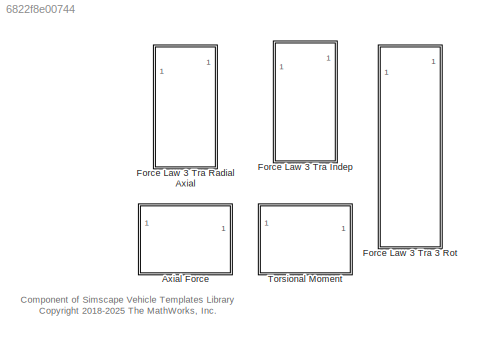
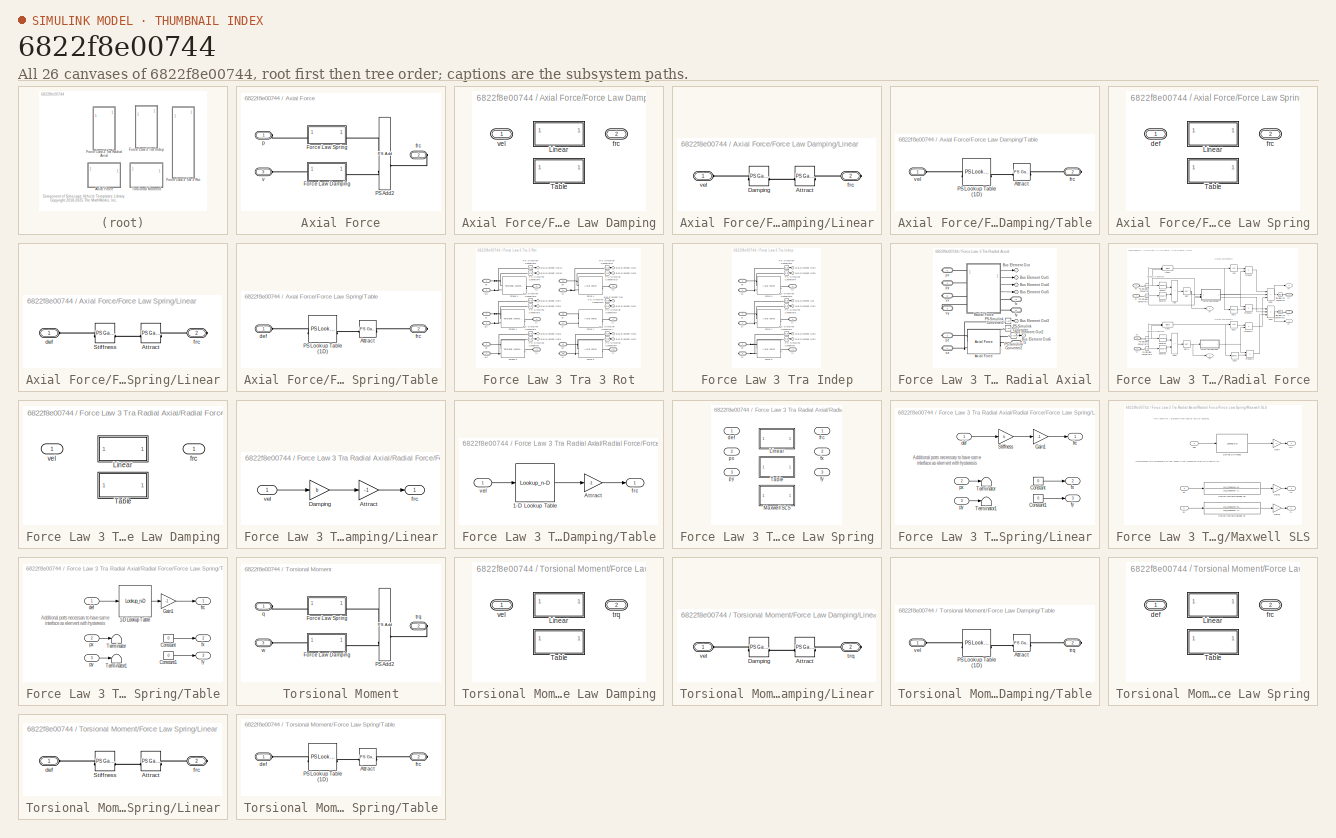
[diagram: thumbnail index - all 26 canvases of the model, root first then tree order]
MODEL slx_6822f8e00744
KIND library
CONFIG AbsTol = auto
CONFIG EnableMultiTasking = off
CONFIG FixedStep = auto
CONFIG MaxStep = auto
CONFIG MinStep = auto
CONFIG RelTol = 1e-3
CONFIG SampleTimeConstraint = Unconstrained
CONFIG SolverName = VariableStepAuto
CONFIG StartTime = 0.0
CONFIG StopTime = 10.0
BLOCK [SubSystem] Axial Force
BLOCK [SubSystem] Axial Force/Force Law Damping
  LabelModeActiveChoice = Linear
  Variant = on
  VariantControl = Choice
  VariantControlMode = label
BLOCK [SubSystem] Axial Force/Force Law Damping/Linear
  VariantControl = Linear
BLOCK [Reference] Axial Force/Force Law Damping/Linear/Attract  REF=fl_lib/Physical Signals/Functions/PS Gain
  SourceBlock = fl_lib/Physical Signals/Functions/PS Gain
  SourceType = PS Gain
BLOCK [Reference] Axial Force/Force Law Damping/Linear/Damping  REF=fl_lib/Physical Signals/Functions/PS Gain
  SourceBlock = fl_lib/Physical Signals/Functions/PS Gain
  SourceType = PS Gain
BLOCK [PMIOPort] Axial Force/Force Law Damping/Linear/frc
  Port = 2
  Side = Right
BLOCK [PMIOPort] Axial Force/Force Law Damping/Linear/vel
  Side = Left
BLOCK [SubSystem] Axial Force/Force Law Damping/Table
  VariantControl = Table
BLOCK [Reference] Axial Force/Force Law Damping/Table/Attract  REF=fl_lib/Physical Signals/Functions/PS Gain
  SourceBlock = fl_lib/Physical Signals/Functions/PS Gain
  SourceType = PS Gain
BLOCK [Reference] Axial Force/Force Law Damping/Table/PS Lookup Table (1D)  REF=fl_lib/Physical Signals/Lookup Tables/PS Lookup Table (1D)
  SourceBlock = fl_lib/Physical Signals/Lookup Tables/PS Lookup Table (1D)
  SourceType = PS Lookup Table (1D)
BLOCK [PMIOPort] Axial Force/Force Law Damping/Table/frc
  Port = 2
  Side = Right
BLOCK [PMIOPort] Axial Force/Force Law Damping/Table/vel
  Side = Left
BLOCK [PMIOPort] Axial Force/Force Law Damping/frc
  Port = 2
  Side = Right
BLOCK [PMIOPort] Axial Force/Force Law Damping/vel
  Side = Left
BLOCK [SubSystem] Axial Force/Force Law Spring
  LabelModeActiveChoice = Linear
  Variant = on
  VariantControl = Choice
  VariantControlMode = label
BLOCK [SubSystem] Axial Force/Force Law Spring/Linear
  VariantControl = Linear
BLOCK [Reference] Axial Force/Force Law Spring/Linear/Attract  REF=fl_lib/Physical Signals/Functions/PS Gain
  SourceBlock = fl_lib/Physical Signals/Functions/PS Gain
  SourceType = PS Gain
BLOCK [Reference] Axial Force/Force Law Spring/Linear/Stiffness  REF=fl_lib/Physical Signals/Functions/PS Gain
  SourceBlock = fl_lib/Physical Signals/Functions/PS Gain
  SourceType = PS Gain
BLOCK [PMIOPort] Axial Force/Force Law Spring/Linear/def
  Side = Left
BLOCK [PMIOPort] Axial Force/Force Law Spring/Linear/frc
  Port = 2
  Side = Right
BLOCK [SubSystem] Axial Force/Force Law Spring/Table
  VariantControl = Table
BLOCK [Reference] Axial Force/Force Law Spring/Table/Attract  REF=fl_lib/Physical Signals/Functions/PS Gain
  SourceBlock = fl_lib/Physical Signals/Functions/PS Gain
  SourceType = PS Gain
BLOCK [Reference] Axial Force/Force Law Spring/Table/PS Lookup Table (1D)  REF=fl_lib/Physical Signals/Lookup Tables/PS Lookup Table (1D)
  SourceBlock = fl_lib/Physical Signals/Lookup Tables/PS Lookup Table (1D)
  SourceType = PS Lookup Table (1D)
BLOCK [PMIOPort] Axial Force/Force Law Spring/Table/def
  Side = Left
BLOCK [PMIOPort] Axial Force/Force Law Spring/Table/frc
  Port = 2
  Side = Right
BLOCK [PMIOPort] Axial Force/Force Law Spring/def
  Side = Left
BLOCK [PMIOPort] Axial Force/Force Law Spring/frc
  Port = 2
  Side = Right
BLOCK [Reference] Axial Force/PS Add2  REF=fl_lib/Physical Signals/Functions/PS Add
  SourceBlock = fl_lib/Physical Signals/Functions/PS Add
  SourceType = PS Add
BLOCK [PMIOPort] Axial Force/frc
  Port = 2
  Side = Right
BLOCK [PMIOPort] Axial Force/p
  Side = Left
BLOCK [PMIOPort] Axial Force/v
  Port = 3
  Side = Left
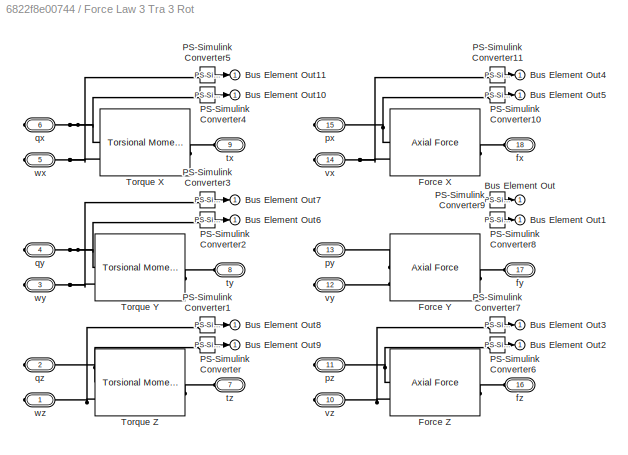
BLOCK [SubSystem] Force Law 3 Tra 3 Rot
BLOCK [Outport] Force Law 3 Tra 3 Rot/Bus Element Out
BLOCK [Outport] Force Law 3 Tra 3 Rot/Bus Element Out1
BLOCK [Outport] Force Law 3 Tra 3 Rot/Bus Element Out10
BLOCK [Outport] Force Law 3 Tra 3 Rot/Bus Element Out11
BLOCK [Outport] Force Law 3 Tra 3 Rot/Bus Element Out2
BLOCK [Outport] Force Law 3 Tra 3 Rot/Bus Element Out3
BLOCK [Outport] Force Law 3 Tra 3 Rot/Bus Element Out4
BLOCK [Outport] Force Law 3 Tra 3 Rot/Bus Element Out5
BLOCK [Outport] Force Law 3 Tra 3 Rot/Bus Element Out6
BLOCK [Outport] Force Law 3 Tra 3 Rot/Bus Element Out7
BLOCK [Outport] Force Law 3 Tra 3 Rot/Bus Element Out8
BLOCK [Outport] Force Law 3 Tra 3 Rot/Bus Element Out9
BLOCK [Reference] Force Law 3 Tra 3 Rot/Force X  REF=$bdroot/Axial Force
  SourceBlock = $bdroot/Axial Force
  SourceType = Axial Compliance
BLOCK [Reference] Force Law 3 Tra 3 Rot/Force Y  REF=$bdroot/Axial Force
  SourceBlock = $bdroot/Axial Force
  SourceType = Axial Compliance
BLOCK [Reference] Force Law 3 Tra 3 Rot/Force Z  REF=$bdroot/Axial Force
  SourceBlock = $bdroot/Axial Force
  SourceType = Axial Compliance
BLOCK [Reference] Force Law 3 Tra 3 Rot/PS-Simulink Converter  REF=nesl_utility/PS-Simulink
Converter
  SourceBlock = nesl_utility/PS-Simulink\nConverter
  SourceType = PS-Simulink\nConverter
BLOCK [Reference] Force Law 3 Tra 3 Rot/PS-Simulink Converter1  REF=nesl_utility/PS-Simulink
Converter
  NameLocation = top
  SourceBlock = nesl_utility/PS-Simulink\nConverter
  SourceType = PS-Simulink\nConverter
BLOCK [Reference] Force Law 3 Tra 3 Rot/PS-Simulink Converter10  REF=nesl_utility/PS-Simulink
Converter
  SourceBlock = nesl_utility/PS-Simulink\nConverter
  SourceType = PS-Simulink\nConverter
BLOCK [Reference] Force Law 3 Tra 3 Rot/PS-Simulink Converter11  REF=nesl_utility/PS-Simulink
Converter
  NameLocation = top
  SourceBlock = nesl_utility/PS-Simulink\nConverter
  SourceType = PS-Simulink\nConverter
BLOCK [Reference] Force Law 3 Tra 3 Rot/PS-Simulink Converter2  REF=nesl_utility/PS-Simulink
Converter
  SourceBlock = nesl_utility/PS-Simulink\nConverter
  SourceType = PS-Simulink\nConverter
BLOCK [Reference] Force Law 3 Tra 3 Rot/PS-Simulink Converter3  REF=nesl_utility/PS-Simulink
Converter
  NameLocation = top
  SourceBlock = nesl_utility/PS-Simulink\nConverter
  SourceType = PS-Simulink\nConverter
BLOCK [Reference] Force Law 3 Tra 3 Rot/PS-Simulink Converter4  REF=nesl_utility/PS-Simulink
Converter
  SourceBlock = nesl_utility/PS-Simulink\nConverter
  SourceType = PS-Simulink\nConverter
BLOCK [Reference] Force Law 3 Tra 3 Rot/PS-Simulink Converter5  REF=nesl_utility/PS-Simulink
Converter
  NameLocation = top
  SourceBlock = nesl_utility/PS-Simulink\nConverter
  SourceType = PS-Simulink\nConverter
BLOCK [Reference] Force Law 3 Tra 3 Rot/PS-Simulink Converter6  REF=nesl_utility/PS-Simulink
Converter
  SourceBlock = nesl_utility/PS-Simulink\nConverter
  SourceType = PS-Simulink\nConverter
BLOCK [Reference] Force Law 3 Tra 3 Rot/PS-Simulink Converter7  REF=nesl_utility/PS-Simulink
Converter
  NameLocation = top
  SourceBlock = nesl_utility/PS-Simulink\nConverter
  SourceType = PS-Simulink\nConverter
BLOCK [Reference] Force Law 3 Tra 3 Rot/PS-Simulink Converter8  REF=nesl_utility/PS-Simulink
Converter
  SourceBlock = nesl_utility/PS-Simulink\nConverter
  SourceType = PS-Simulink\nConverter
BLOCK [Reference] Force Law 3 Tra 3 Rot/PS-Simulink Converter9  REF=nesl_utility/PS-Simulink
Converter
  NameLocation = top
  SourceBlock = nesl_utility/PS-Simulink\nConverter
  SourceType = PS-Simulink\nConverter
BLOCK [Reference] Force Law 3 Tra 3 Rot/Torque X  REF=$bdroot/Torsional Moment
  SourceBlock = $bdroot/Torsional Moment
  SourceType = Axial Compliance
BLOCK [Reference] Force Law 3 Tra 3 Rot/Torque Y  REF=$bdroot/Torsional Moment
  SourceBlock = $bdroot/Torsional Moment
  SourceType = Axial Compliance
BLOCK [Reference] Force Law 3 Tra 3 Rot/Torque Z  REF=$bdroot/Torsional Moment
  SourceBlock = $bdroot/Torsional Moment
  SourceType = Axial Compliance
BLOCK [PMIOPort] Force Law 3 Tra 3 Rot/fx
  Port = 18
  Side = Left
BLOCK [PMIOPort] Force Law 3 Tra 3 Rot/fy
  Port = 17
  Side = Left
BLOCK [PMIOPort] Force Law 3 Tra 3 Rot/fz
  Port = 16
  Side = Left
BLOCK [PMIOPort] Force Law 3 Tra 3 Rot/px
  Port = 15
  Side = Right
BLOCK [PMIOPort] Force Law 3 Tra 3 Rot/py
  Port = 13
  Side = Right
BLOCK [PMIOPort] Force Law 3 Tra 3 Rot/pz
  Port = 11
  Side = Right
BLOCK [PMIOPort] Force Law 3 Tra 3 Rot/qx
  Port = 6
  Side = Right
BLOCK [PMIOPort] Force Law 3 Tra 3 Rot/qy
  Port = 4
  Side = Right
BLOCK [PMIOPort] Force Law 3 Tra 3 Rot/qz
  Port = 2
  Side = Right
BLOCK [PMIOPort] Force Law 3 Tra 3 Rot/tx
  Port = 9
  Side = Left
BLOCK [PMIOPort] Force Law 3 Tra 3 Rot/ty
  Port = 8
  Side = Left
BLOCK [PMIOPort] Force Law 3 Tra 3 Rot/tz
  Port = 7
  Side = Left
BLOCK [PMIOPort] Force Law 3 Tra 3 Rot/vx
  Port = 14
  Side = Right
BLOCK [PMIOPort] Force Law 3 Tra 3 Rot/vy
  Port = 12
  Side = Right
BLOCK [PMIOPort] Force Law 3 Tra 3 Rot/vz
  Port = 10
  Side = Right
BLOCK [PMIOPort] Force Law 3 Tra 3 Rot/wx
  Port = 5
  Side = Right
BLOCK [PMIOPort] Force Law 3 Tra 3 Rot/wy
  Port = 3
  Side = Right
BLOCK [PMIOPort] Force Law 3 Tra 3 Rot/wz
  Side = Right
BLOCK [SubSystem] Force Law 3 Tra Indep
BLOCK [Outport] Force Law 3 Tra Indep/Bus Element Out
BLOCK [Outport] Force Law 3 Tra Indep/Bus Element Out1
BLOCK [Outport] Force Law 3 Tra Indep/Bus Element Out2
BLOCK [Outport] Force Law 3 Tra Indep/Bus Element Out3
BLOCK [Outport] Force Law 3 Tra Indep/Bus Element Out4
BLOCK [Outport] Force Law 3 Tra Indep/Bus Element Out5
BLOCK [Reference] Force Law 3 Tra Indep/Force X  REF=$bdroot/Axial Force
  SourceBlock = $bdroot/Axial Force
  SourceType = Axial Compliance
BLOCK [Reference] Force Law 3 Tra Indep/Force Y  REF=$bdroot/Axial Force
  SourceBlock = $bdroot/Axial Force
  SourceType = Axial Compliance
BLOCK [Reference] Force Law 3 Tra Indep/Force Z  REF=$bdroot/Axial Force
  SourceBlock = $bdroot/Axial Force
  SourceType = Axial Compliance
BLOCK [Reference] Force Law 3 Tra Indep/PS-Simulink Converter  REF=nesl_utility/PS-Simulink
Converter
  SourceBlock = nesl_utility/PS-Simulink\nConverter
  SourceType = PS-Simulink\nConverter
BLOCK [Reference] Force Law 3 Tra Indep/PS-Simulink Converter1  REF=nesl_utility/PS-Simulink
Converter
  NameLocation = top
  SourceBlock = nesl_utility/PS-Simulink\nConverter
  SourceType = PS-Simulink\nConverter
BLOCK [Reference] Force Law 3 Tra Indep/PS-Simulink Converter2  REF=nesl_utility/PS-Simulink
Converter
  SourceBlock = nesl_utility/PS-Simulink\nConverter
  SourceType = PS-Simulink\nConverter
BLOCK [Reference] Force Law 3 Tra Indep/PS-Simulink Converter3  REF=nesl_utility/PS-Simulink
Converter
  NameLocation = top
  SourceBlock = nesl_utility/PS-Simulink\nConverter
  SourceType = PS-Simulink\nConverter
BLOCK [Reference] Force Law 3 Tra Indep/PS-Simulink Converter4  REF=nesl_utility/PS-Simulink
Converter
  SourceBlock = nesl_utility/PS-Simulink\nConverter
  SourceType = PS-Simulink\nConverter
BLOCK [Reference] Force Law 3 Tra Indep/PS-Simulink Converter5  REF=nesl_utility/PS-Simulink
Converter
  NameLocation = top
  SourceBlock = nesl_utility/PS-Simulink\nConverter
  SourceType = PS-Simulink\nConverter
BLOCK [PMIOPort] Force Law 3 Tra Indep/fx
  Port = 9
  Side = Left
BLOCK [PMIOPort] Force Law 3 Tra Indep/fy
  Port = 8
  Side = Left
BLOCK [PMIOPort] Force Law 3 Tra Indep/fz
  Port = 7
  Side = Left
BLOCK [PMIOPort] Force Law 3 Tra Indep/px
  Port = 6
  Side = Right
BLOCK [PMIOPort] Force Law 3 Tra Indep/py
  Port = 4
  Side = Right
BLOCK [PMIOPort] Force Law 3 Tra Indep/pz
  Port = 2
  Side = Right
BLOCK [PMIOPort] Force Law 3 Tra Indep/vx
  Port = 5
  Side = Right
BLOCK [PMIOPort] Force Law 3 Tra Indep/vy
  Port = 3
  Side = Right
BLOCK [PMIOPort] Force Law 3 Tra Indep/vz
  Side = Right
BLOCK [SubSystem] Force Law 3 Tra Radial Axial
BLOCK [Reference] Force Law 3 Tra Radial Axial/Axial Force  REF=$bdroot/Axial Force
  SourceBlock = $bdroot/Axial Force
  SourceType = Axial Compliance
BLOCK [Outport] Force Law 3 Tra Radial Axial/Bus Element Out
BLOCK [Outport] Force Law 3 Tra Radial Axial/Bus Element Out1
BLOCK [Outport] Force Law 3 Tra Radial Axial/Bus Element Out2
BLOCK [Outport] Force Law 3 Tra Radial Axial/Bus Element Out3
BLOCK [Outport] Force Law 3 Tra Radial Axial/Bus Element Out4
BLOCK [Outport] Force Law 3 Tra Radial Axial/Bus Element Out5
BLOCK [Outport] Force Law 3 Tra Radial Axial/Bus Element Out6
BLOCK [Reference] Force Law 3 Tra Radial Axial/PS-Simulink Converter  REF=nesl_utility/PS-Simulink
Converter
  SourceBlock = nesl_utility/PS-Simulink\nConverter
  SourceType = PS-Simulink\nConverter
BLOCK [Reference] Force Law 3 Tra Radial Axial/PS-Simulink Converter1  REF=nesl_utility/PS-Simulink
Converter
  SourceBlock = nesl_utility/PS-Simulink\nConverter
  SourceType = PS-Simulink\nConverter
BLOCK [Reference] Force Law 3 Tra Radial Axial/PS-Simulink Converter2  REF=nesl_utility/PS-Simulink
Converter
  SourceBlock = nesl_utility/PS-Simulink\nConverter
  SourceType = PS-Simulink\nConverter
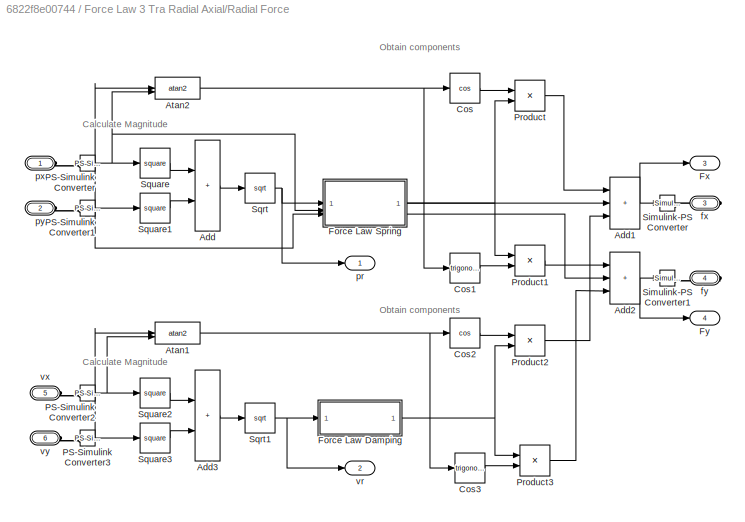
BLOCK [SubSystem] Force Law 3 Tra Radial Axial/Radial Force
BLOCK [Sum] Force Law 3 Tra Radial Axial/Radial Force/Add
  IconShape = rectangular
BLOCK [Sum] Force Law 3 Tra Radial Axial/Radial Force/Add1
  IconShape = rectangular
  Inputs = +++
BLOCK [Sum] Force Law 3 Tra Radial Axial/Radial Force/Add2
  IconShape = rectangular
  Inputs = +++
BLOCK [Sum] Force Law 3 Tra Radial Axial/Radial Force/Add3
  IconShape = rectangular
BLOCK [Trigonometry] Force Law 3 Tra Radial Axial/Radial Force/Atan1
  Operator = atan2
BLOCK [Trigonometry] Force Law 3 Tra Radial Axial/Radial Force/Atan2
  Operator = atan2
BLOCK [Trigonometry] Force Law 3 Tra Radial Axial/Radial Force/Cos
  Operator = cos
BLOCK [Trigonometry] Force Law 3 Tra Radial Axial/Radial Force/Cos1
BLOCK [Trigonometry] Force Law 3 Tra Radial Axial/Radial Force/Cos2
  Operator = cos
BLOCK [Trigonometry] Force Law 3 Tra Radial Axial/Radial Force/Cos3
BLOCK [SubSystem] Force Law 3 Tra Radial Axial/Radial Force/Force Law Damping
  LabelModeActiveChoice = Linear
  Variant = on
  VariantControl = Choice
  VariantControlMode = label
BLOCK [SubSystem] Force Law 3 Tra Radial Axial/Radial Force/Force Law Damping/Linear
  VariantControl = Linear
BLOCK [Gain] Force Law 3 Tra Radial Axial/Radial Force/Force Law Damping/Linear/Attract
  Gain = -1
BLOCK [Gain] Force Law 3 Tra Radial Axial/Radial Force/Force Law Damping/Linear/Damping
  Gain = b
BLOCK [Outport] Force Law 3 Tra Radial Axial/Radial Force/Force Law Damping/Linear/frc
BLOCK [Inport] Force Law 3 Tra Radial Axial/Radial Force/Force Law Damping/Linear/vel
BLOCK [SubSystem] Force Law 3 Tra Radial Axial/Radial Force/Force Law Damping/Table
  VariantControl = Table
BLOCK [Lookup_n-D] Force Law 3 Tra Radial Axial/Radial Force/Force Law Damping/Table/1-D Lookup Table
  BreakpointsForDimension1 = x
  InputPortMap = u0
  InternalRulePriority = Speed
  NumberOfTableDimensions = 1
  RndMeth = Simplest
  Table = f
BLOCK [Gain] Force Law 3 Tra Radial Axial/Radial Force/Force Law Damping/Table/Attract
  Gain = -1
BLOCK [Outport] Force Law 3 Tra Radial Axial/Radial Force/Force Law Damping/Table/frc
BLOCK [Inport] Force Law 3 Tra Radial Axial/Radial Force/Force Law Damping/Table/vel
BLOCK [Outport] Force Law 3 Tra Radial Axial/Radial Force/Force Law Damping/frc
BLOCK [Inport] Force Law 3 Tra Radial Axial/Radial Force/Force Law Damping/vel
BLOCK [SubSystem] Force Law 3 Tra Radial Axial/Radial Force/Force Law Spring
  LabelModeActiveChoice = Linear
  Variant = on
  VariantControl = Choice
  VariantControlMode = label
BLOCK [SubSystem] Force Law 3 Tra Radial Axial/Radial Force/Force Law Spring/Linear
  VariantControl = Linear
BLOCK [Constant] Force Law 3 Tra Radial Axial/Radial Force/Force Law Spring/Linear/Constant
  Value = 0
BLOCK [Constant] Force Law 3 Tra Radial Axial/Radial Force/Force Law Spring/Linear/Constant1
  Value = 0
BLOCK [Gain] Force Law 3 Tra Radial Axial/Radial Force/Force Law Spring/Linear/Gain1
  Gain = -1
BLOCK [Gain] Force Law 3 Tra Radial Axial/Radial Force/Force Law Spring/Linear/Stiffness
  Gain = k
BLOCK [Terminator] Force Law 3 Tra Radial Axial/Radial Force/Force Law Spring/Linear/Terminator
BLOCK [Terminator] Force Law 3 Tra Radial Axial/Radial Force/Force Law Spring/Linear/Terminator1
BLOCK [Inport] Force Law 3 Tra Radial Axial/Radial Force/Force Law Spring/Linear/def
BLOCK [Outport] Force Law 3 Tra Radial Axial/Radial Force/Force Law Spring/Linear/frc
BLOCK [Outport] Force Law 3 Tra Radial Axial/Radial Force/Force Law Spring/Linear/fx
  Port = 2
BLOCK [Outport] Force Law 3 Tra Radial Axial/Radial Force/Force Law Spring/Linear/fy
  Port = 3
BLOCK [Inport] Force Law 3 Tra Radial Axial/Radial Force/Force Law Spring/Linear/px
  Port = 2
BLOCK [Inport] Force Law 3 Tra Radial Axial/Radial Force/Force Law Spring/Linear/py
  Port = 3
BLOCK [SubSystem] Force Law 3 Tra Radial Axial/Radial Force/Force Law Spring/Maxwell SLS
  VariantControl = Maxwell_SLS
BLOCK [Gain] Force Law 3 Tra Radial Axial/Radial Force/Force Law Spring/Maxwell SLS/Gain
  Gain = -1
BLOCK [Gain] Force Law 3 Tra Radial Axial/Radial Force/Force Law Spring/Maxwell SLS/Gain1
  Gain = -1
BLOCK [Gain] Force Law 3 Tra Radial Axial/Radial Force/Force Law Spring/Maxwell SLS/Gain2
  Gain = -1
BLOCK [TransferFcn] Force Law 3 Tra Radial Axial/Radial Force/Force Law Spring/Maxwell SLS/Series Spring Damper px
  Denominator = [b1_maxwell k1_maxwell]
  Numerator = [k1_maxwell*b1_maxwell 0]
BLOCK [TransferFcn] Force Law 3 Tra Radial Axial/Radial Force/Force Law Spring/Maxwell SLS/Series Spring Damper py
  Denominator = [b1_maxwell k1_maxwell]
  Numerator = [k1_maxwell*b1_maxwell 0]
BLOCK [Lookup_n-D] Force Law 3 Tra Radial Axial/Radial Force/Force Law Spring/Maxwell SLS/Spring Stiffness
  BreakpointsForDimension1 = x
  InputPortMap = u0
  InternalRulePriority = Speed
  NumberOfTableDimensions = 1
  RndMeth = Simplest
  Table = f
BLOCK [Inport] Force Law 3 Tra Radial Axial/Radial Force/Force Law Spring/Maxwell SLS/def
BLOCK [Outport] Force Law 3 Tra Radial Axial/Radial Force/Force Law Spring/Maxwell SLS/frc
BLOCK [Outport] Force Law 3 Tra Radial Axial/Radial Force/Force Law Spring/Maxwell SLS/fx
  Port = 2
BLOCK [Outport] Force Law 3 Tra Radial Axial/Radial Force/Force Law Spring/Maxwell SLS/fy
  Port = 3
BLOCK [Inport] Force Law 3 Tra Radial Axial/Radial Force/Force Law Spring/Maxwell SLS/px
  Port = 2
BLOCK [Inport] Force Law 3 Tra Radial Axial/Radial Force/Force Law Spring/Maxwell SLS/py
  Port = 3
BLOCK [SubSystem] Force Law 3 Tra Radial Axial/Radial Force/Force Law Spring/Table
  VariantControl = Table
BLOCK [Lookup_n-D] Force Law 3 Tra Radial Axial/Radial Force/Force Law Spring/Table/1-D Lookup Table
  BreakpointsForDimension1 = x
  InputPortMap = u0
  InternalRulePriority = Speed
  NumberOfTableDimensions = 1
  RndMeth = Simplest
  Table = f
BLOCK [Constant] Force Law 3 Tra Radial Axial/Radial Force/Force Law Spring/Table/Constant
  Value = 0
BLOCK [Constant] Force Law 3 Tra Radial Axial/Radial Force/Force Law Spring/Table/Constant1
  Value = 0
BLOCK [Gain] Force Law 3 Tra Radial Axial/Radial Force/Force Law Spring/Table/Gain1
  Gain = -1
BLOCK [Terminator] Force Law 3 Tra Radial Axial/Radial Force/Force Law Spring/Table/Terminator
BLOCK [Terminator] Force Law 3 Tra Radial Axial/Radial Force/Force Law Spring/Table/Terminator1
BLOCK [Inport] Force Law 3 Tra Radial Axial/Radial Force/Force Law Spring/Table/def
BLOCK [Outport] Force Law 3 Tra Radial Axial/Radial Force/Force Law Spring/Table/frc
BLOCK [Outport] Force Law 3 Tra Radial Axial/Radial Force/Force Law Spring/Table/fx
  Port = 2
BLOCK [Outport] Force Law 3 Tra Radial Axial/Radial Force/Force Law Spring/Table/fy
  Port = 3
BLOCK [Inport] Force Law 3 Tra Radial Axial/Radial Force/Force Law Spring/Table/px
  Port = 2
BLOCK [Inport] Force Law 3 Tra Radial Axial/Radial Force/Force Law Spring/Table/py
  Port = 3
BLOCK [Inport] Force Law 3 Tra Radial Axial/Radial Force/Force Law Spring/def
BLOCK [Outport] Force Law 3 Tra Radial Axial/Radial Force/Force Law Spring/frc
BLOCK [Outport] Force Law 3 Tra Radial Axial/Radial Force/Force Law Spring/fx
  Port = 2
BLOCK [Outport] Force Law 3 Tra Radial Axial/Radial Force/Force Law Spring/fy
  Port = 3
BLOCK [Inport] Force Law 3 Tra Radial Axial/Radial Force/Force Law Spring/px
  Port = 2
BLOCK [Inport] Force Law 3 Tra Radial Axial/Radial Force/Force Law Spring/py
  Port = 3
BLOCK [Outport] Force Law 3 Tra Radial Axial/Radial Force/Fx
  Port = 3
BLOCK [Outport] Force Law 3 Tra Radial Axial/Radial Force/Fy
  Port = 4
BLOCK [Reference] Force Law 3 Tra Radial Axial/Radial Force/PS-Simulink Converter  REF=nesl_utility/PS-Simulink
Converter
  SourceBlock = nesl_utility/PS-Simulink\nConverter
  SourceType = PS-Simulink\nConverter
BLOCK [Reference] Force Law 3 Tra Radial Axial/Radial Force/PS-Simulink Converter1  REF=nesl_utility/PS-Simulink
Converter
  SourceBlock = nesl_utility/PS-Simulink\nConverter
  SourceType = PS-Simulink\nConverter
BLOCK [Reference] Force Law 3 Tra Radial Axial/Radial Force/PS-Simulink Converter2  REF=nesl_utility/PS-Simulink
Converter
  SourceBlock = nesl_utility/PS-Simulink\nConverter
  SourceType = PS-Simulink\nConverter
BLOCK [Reference] Force Law 3 Tra Radial Axial/Radial Force/PS-Simulink Converter3  REF=nesl_utility/PS-Simulink
Converter
  SourceBlock = nesl_utility/PS-Simulink\nConverter
  SourceType = PS-Simulink\nConverter
BLOCK [Product] Force Law 3 Tra Radial Axial/Radial Force/Product
BLOCK [Product] Force Law 3 Tra Radial Axial/Radial Force/Product1
BLOCK [Product] Force Law 3 Tra Radial Axial/Radial Force/Product2
BLOCK [Product] Force Law 3 Tra Radial Axial/Radial Force/Product3
BLOCK [Reference] Force Law 3 Tra Radial Axial/Radial Force/Simulink-PS Converter  REF=nesl_utility/Simulink-PS
Converter
  SourceBlock = nesl_utility/Simulink-PS\nConverter
  SourceType = Simulink-PS\nConverter
BLOCK [Reference] Force Law 3 Tra Radial Axial/Radial Force/Simulink-PS Converter1  REF=nesl_utility/Simulink-PS
Converter
  SourceBlock = nesl_utility/Simulink-PS\nConverter
  SourceType = Simulink-PS\nConverter
BLOCK [Sqrt] Force Law 3 Tra Radial Axial/Radial Force/Sqrt
BLOCK [Sqrt] Force Law 3 Tra Radial Axial/Radial Force/Sqrt1
BLOCK [Math] Force Law 3 Tra Radial Axial/Radial Force/Square
  Operator = square
BLOCK [Math] Force Law 3 Tra Radial Axial/Radial Force/Square1
  Operator = square
BLOCK [Math] Force Law 3 Tra Radial Axial/Radial Force/Square2
  Operator = square
BLOCK [Math] Force Law 3 Tra Radial Axial/Radial Force/Square3
  Operator = square
BLOCK [PMIOPort] Force Law 3 Tra Radial Axial/Radial Force/fx
  Port = 3
  Side = Right
BLOCK [PMIOPort] Force Law 3 Tra Radial Axial/Radial Force/fy
  Port = 4
  Side = Right
BLOCK [Outport] Force Law 3 Tra Radial Axial/Radial Force/pr
BLOCK [PMIOPort] Force Law 3 Tra Radial Axial/Radial Force/px
  Side = Left
BLOCK [PMIOPort] Force Law 3 Tra Radial Axial/Radial Force/py
  Port = 2
  Side = Left
BLOCK [Outport] Force Law 3 Tra Radial Axial/Radial Force/vr
  Port = 2
BLOCK [PMIOPort] Force Law 3 Tra Radial Axial/Radial Force/vx
  Port = 5
  Side = Left
BLOCK [PMIOPort] Force Law 3 Tra Radial Axial/Radial Force/vy
  Port = 6
  Side = Left
BLOCK [PMIOPort] Force Law 3 Tra Radial Axial/fx
  Port = 9
  Side = Left
BLOCK [PMIOPort] Force Law 3 Tra Radial Axial/fy
  Port = 8
  Side = Left
BLOCK [PMIOPort] Force Law 3 Tra Radial Axial/fz
  Port = 7
  Side = Left
BLOCK [PMIOPort] Force Law 3 Tra Radial Axial/px
  Port = 6
  Side = Right
BLOCK [PMIOPort] Force Law 3 Tra Radial Axial/py
  Port = 4
  Side = Right
BLOCK [PMIOPort] Force Law 3 Tra Radial Axial/pz
  Port = 2
  Side = Right
BLOCK [PMIOPort] Force Law 3 Tra Radial Axial/vx
  Port = 5
  Side = Right
BLOCK [PMIOPort] Force Law 3 Tra Radial Axial/vy
  Port = 3
  Side = Right
BLOCK [PMIOPort] Force Law 3 Tra Radial Axial/vz
  Side = Right
BLOCK [SubSystem] Torsional Moment
BLOCK [SubSystem] Torsional Moment/Force Law Damping
  LabelModeActiveChoice = Linear
  Variant = on
  VariantControl = Choice
  VariantControlMode = label
BLOCK [SubSystem] Torsional Moment/Force Law Damping/Linear
  VariantControl = Linear
BLOCK [Reference] Torsional Moment/Force Law Damping/Linear/Attract  REF=fl_lib/Physical Signals/Functions/PS Gain
  SourceBlock = fl_lib/Physical Signals/Functions/PS Gain
  SourceType = PS Gain
BLOCK [Reference] Torsional Moment/Force Law Damping/Linear/Damping  REF=fl_lib/Physical Signals/Functions/PS Gain
  SourceBlock = fl_lib/Physical Signals/Functions/PS Gain
  SourceType = PS Gain
BLOCK [PMIOPort] Torsional Moment/Force Law Damping/Linear/trq
  Port = 2
  Side = Right
BLOCK [PMIOPort] Torsional Moment/Force Law Damping/Linear/vel
  Side = Left
BLOCK [SubSystem] Torsional Moment/Force Law Damping/Table
  VariantControl = Table
BLOCK [Reference] Torsional Moment/Force Law Damping/Table/Attract  REF=fl_lib/Physical Signals/Functions/PS Gain
  SourceBlock = fl_lib/Physical Signals/Functions/PS Gain
  SourceType = PS Gain
BLOCK [Reference] Torsional Moment/Force Law Damping/Table/PS Lookup Table (1D)  REF=fl_lib/Physical Signals/Lookup Tables/PS Lookup Table (1D)
  SourceBlock = fl_lib/Physical Signals/Lookup Tables/PS Lookup Table (1D)
  SourceType = PS Lookup Table (1D)
BLOCK [PMIOPort] Torsional Moment/Force Law Damping/Table/trq
  Port = 2
  Side = Right
BLOCK [PMIOPort] Torsional Moment/Force Law Damping/Table/vel
  Side = Left
BLOCK [PMIOPort] Torsional Moment/Force Law Damping/trq
  Port = 2
  Side = Right
BLOCK [PMIOPort] Torsional Moment/Force Law Damping/vel
  Side = Left
BLOCK [SubSystem] Torsional Moment/Force Law Spring
  LabelModeActiveChoice = Linear
  Variant = on
  VariantControl = Choice
  VariantControlMode = label
BLOCK [SubSystem] Torsional Moment/Force Law Spring/Linear
  VariantControl = Linear
BLOCK [Reference] Torsional Moment/Force Law Spring/Linear/Attract  REF=fl_lib/Physical Signals/Functions/PS Gain
  SourceBlock = fl_lib/Physical Signals/Functions/PS Gain
  SourceType = PS Gain
BLOCK [Reference] Torsional Moment/Force Law Spring/Linear/Stiffness  REF=fl_lib/Physical Signals/Functions/PS Gain
  SourceBlock = fl_lib/Physical Signals/Functions/PS Gain
  SourceType = PS Gain
BLOCK [PMIOPort] Torsional Moment/Force Law Spring/Linear/def
  Side = Left
BLOCK [PMIOPort] Torsional Moment/Force Law Spring/Linear/frc
  Port = 2
  Side = Right
BLOCK [SubSystem] Torsional Moment/Force Law Spring/Table
  VariantControl = Table
BLOCK [Reference] Torsional Moment/Force Law Spring/Table/Attract  REF=fl_lib/Physical Signals/Functions/PS Gain
  SourceBlock = fl_lib/Physical Signals/Functions/PS Gain
  SourceType = PS Gain
BLOCK [Reference] Torsional Moment/Force Law Spring/Table/PS Lookup Table (1D)  REF=fl_lib/Physical Signals/Lookup Tables/PS Lookup Table (1D)
  SourceBlock = fl_lib/Physical Signals/Lookup Tables/PS Lookup Table (1D)
  SourceType = PS Lookup Table (1D)
BLOCK [PMIOPort] Torsional Moment/Force Law Spring/Table/def
  Side = Left
BLOCK [PMIOPort] Torsional Moment/Force Law Spring/Table/frc
  Port = 2
  Side = Right
BLOCK [PMIOPort] Torsional Moment/Force Law Spring/def
  Side = Left
BLOCK [PMIOPort] Torsional Moment/Force Law Spring/frc
  Port = 2
  Side = Right
BLOCK [Reference] Torsional Moment/PS Add2  REF=fl_lib/Physical Signals/Functions/PS Add
  SourceBlock = fl_lib/Physical Signals/Functions/PS Add
  SourceType = PS Add
BLOCK [PMIOPort] Torsional Moment/q
  Side = Left
BLOCK [PMIOPort] Torsional Moment/trq
  Port = 2
  Side = Right
BLOCK [PMIOPort] Torsional Moment/w
  Port = 3
  Side = Left
ANNOTATION (root): Component of Simscape Vehicle Templates Library <copyright redacted>
ANNOTATION Force Law 3 Tra Radial Axial/Radial Force: Calculate Magnitude
ANNOTATION Force Law 3 Tra Radial Axial/Radial Force: Obtain components
ANNOTATION Force Law 3 Tra Radial Axial/Radial Force/Force Law Spring/Linear: Additional ports necessary to have same interface as element with hysteresis
ANNOTATION Force Law 3 Tra Radial Axial/Radial Force/Force Law Spring/Maxwell SLS: Decomposed into components so that speed is not measured relative to central axis of bushing.
ANNOTATION Force Law 3 Tra Radial Axial/Radial Force/Force Law Spring/Maxwell SLS: Only positive - distance from central axis of bushing.
ANNOTATION Force Law 3 Tra Radial Axial/Radial Force/Force Law Spring/Table: Additional ports necessary to have same interface as element with hysteresis
PLINE Axial Force/Force Law Damping/Linear/Attract:LConn1 -- Axial Force/Force Law Damping/Linear/Damping:RConn1
PLINE Axial Force/Force Law Damping/Linear/Attract:RConn1 -- Axial Force/Force Law Damping/Linear/frc:RConn1
PLINE Axial Force/Force Law Damping/Linear/Damping:LConn1 -- Axial Force/Force Law Damping/Linear/vel:RConn1
PLINE Axial Force/Force Law Damping/Table/Attract:LConn1 -- Axial Force/Force Law Damping/Table/PS Lookup Table (1D):RConn1
PLINE Axial Force/Force Law Damping/Table/Attract:RConn1 -- Axial Force/Force Law Damping/Table/frc:RConn1
PLINE Axial Force/Force Law Damping/Table/PS Lookup Table (1D):LConn1 -- Axial Force/Force Law Damping/Table/vel:RConn1
PLINE Axial Force/Force Law Damping:LConn1 -- Axial Force/v:RConn1
PLINE Axial Force/Force Law Damping:RConn1 -- Axial Force/PS Add2:LConn2
PLINE Axial Force/Force Law Spring/Linear/Attract:LConn1 -- Axial Force/Force Law Spring/Linear/Stiffness:RConn1
PLINE Axial Force/Force Law Spring/Linear/Attract:RConn1 -- Axial Force/Force Law Spring/Linear/frc:RConn1
PLINE Axial Force/Force Law Spring/Linear/Stiffness:LConn1 -- Axial Force/Force Law Spring/Linear/def:RConn1
PLINE Axial Force/Force Law Spring/Table/Attract:LConn1 -- Axial Force/Force Law Spring/Table/PS Lookup Table (1D):RConn1
PLINE Axial Force/Force Law Spring/Table/Attract:RConn1 -- Axial Force/Force Law Spring/Table/frc:RConn1
PLINE Axial Force/Force Law Spring/Table/PS Lookup Table (1D):LConn1 -- Axial Force/Force Law Spring/Table/def:RConn1
PLINE Axial Force/Force Law Spring:LConn1 -- Axial Force/p:RConn1
PLINE Axial Force/Force Law Spring:RConn1 -- Axial Force/PS Add2:LConn1
PLINE Axial Force/PS Add2:RConn1 -- Axial Force/frc:RConn1
PLINE Torsional Moment/Force Law Damping/Linear/Attract:LConn1 -- Torsional Moment/Force Law Damping/Linear/Damping:RConn1
PLINE Torsional Moment/Force Law Damping/Linear/Attract:RConn1 -- Torsional Moment/Force Law Damping/Linear/trq:RConn1
PLINE Torsional Moment/Force Law Damping/Linear/Damping:LConn1 -- Torsional Moment/Force Law Damping/Linear/vel:RConn1
PLINE Torsional Moment/Force Law Damping/Table/Attract:LConn1 -- Torsional Moment/Force Law Damping/Table/PS Lookup Table (1D):RConn1
PLINE Torsional Moment/Force Law Damping/Table/Attract:RConn1 -- Torsional Moment/Force Law Damping/Table/trq:RConn1
PLINE Torsional Moment/Force Law Damping/Table/PS Lookup Table (1D):LConn1 -- Torsional Moment/Force Law Damping/Table/vel:RConn1
PLINE Torsional Moment/Force Law Damping:LConn1 -- Torsional Moment/w:RConn1
PLINE Torsional Moment/Force Law Damping:RConn1 -- Torsional Moment/PS Add2:LConn2
PLINE Torsional Moment/Force Law Spring/Linear/Attract:LConn1 -- Torsional Moment/Force Law Spring/Linear/Stiffness:RConn1
PLINE Torsional Moment/Force Law Spring/Linear/Attract:RConn1 -- Torsional Moment/Force Law Spring/Linear/frc:RConn1
PLINE Torsional Moment/Force Law Spring/Linear/Stiffness:LConn1 -- Torsional Moment/Force Law Spring/Linear/def:RConn1
PLINE Torsional Moment/Force Law Spring/Table/Attract:LConn1 -- Torsional Moment/Force Law Spring/Table/PS Lookup Table (1D):RConn1
PLINE Torsional Moment/Force Law Spring/Table/Attract:RConn1 -- Torsional Moment/Force Law Spring/Table/frc:RConn1
PLINE Torsional Moment/Force Law Spring/Table/PS Lookup Table (1D):LConn1 -- Torsional Moment/Force Law Spring/Table/def:RConn1
PLINE Torsional Moment/Force Law Spring:LConn1 -- Torsional Moment/q:RConn1
PLINE Torsional Moment/Force Law Spring:RConn1 -- Torsional Moment/PS Add2:LConn1
PLINE Torsional Moment/PS Add2:RConn1 -- Torsional Moment/trq:RConn1
